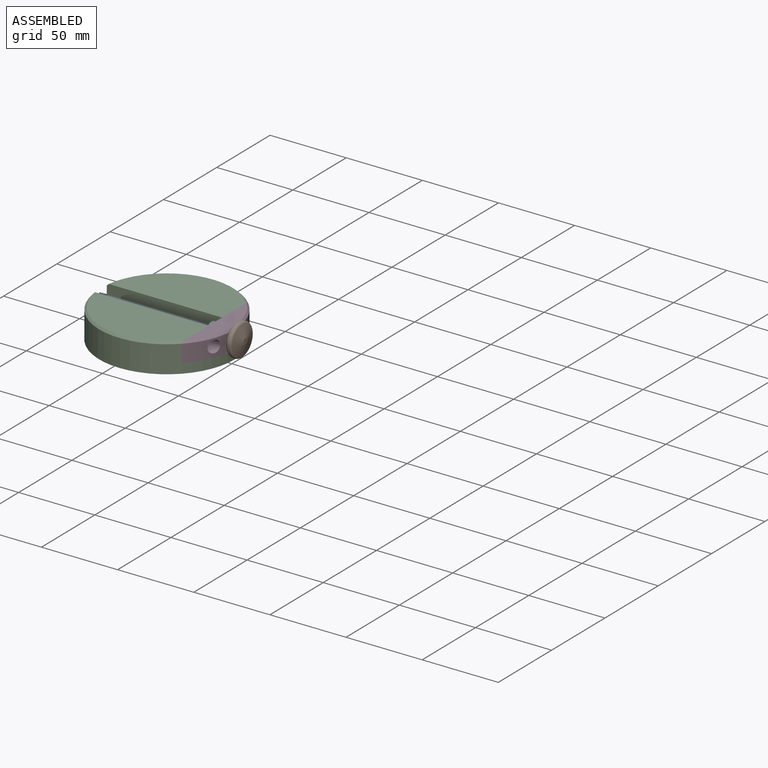
[diagram: assembled view]
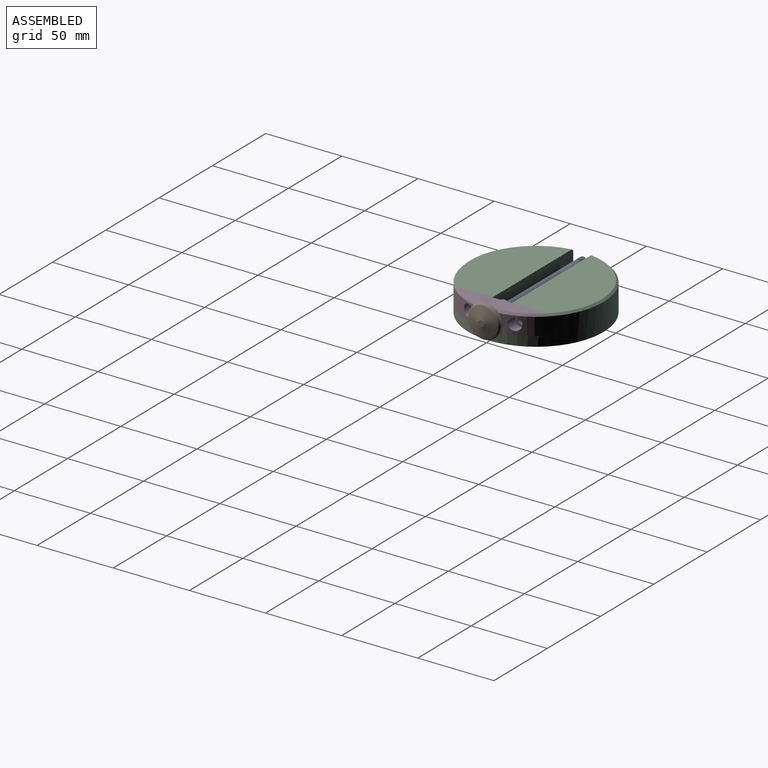
[diagram: assembled view, second angle]
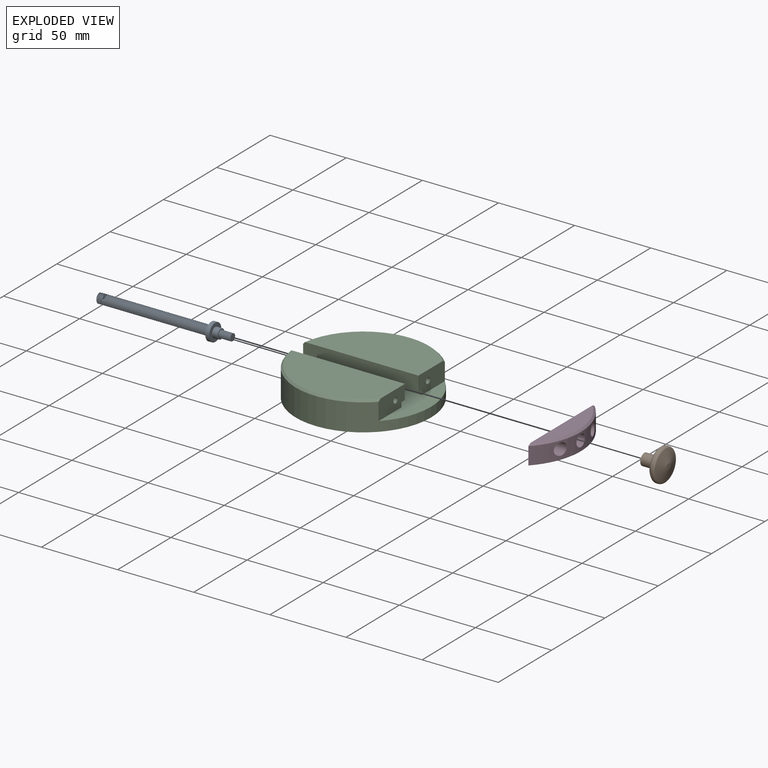
[diagram: exploded view]
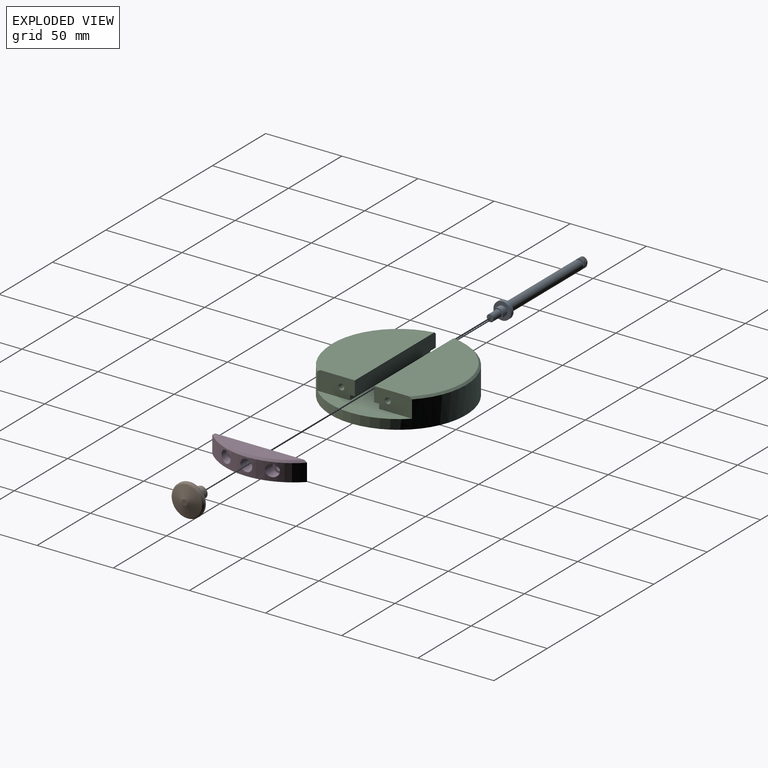
[diagram: exploded view, second angle]
ASSEMBLY  parts=4 mates=3
PART A: 24 faces, bbox 89.7x12.2x12.2 mm
  f0: cylinder r=2.34mm len=4.67mm, axis (-1,0,0), area 10.2mm2, adj f1,f16,f21,f22,f23
  f1: cylinder r=2.34mm len=4.67mm, axis (-1,0,0), area 3.4mm2, adj f0,f2,f22,f23
  f2: cylinder r=2.34mm len=4.67mm, axis (-1,0,0), area 3.4mm2, adj f1,f3,f22,f23
  f3: cylinder r=2.34mm len=4.67mm, axis (-1,0,0), area 3.5mm2, adj f2,f4,f22,f23
  f4: cylinder r=2.34mm len=4.67mm, axis (-1,0,0), area 3.5mm2, adj f3,f5,f22,f23
  f5: cylinder r=2.34mm len=4.67mm, axis (-1,0,0), area 3.4mm2, adj f4,f6,f22,f23
  f6: cylinder r=2.34mm len=4.67mm, axis (-1,0,0), area 3.4mm2, adj f5,f7,f22,f23
  f7: cylinder r=2.34mm len=4.67mm, axis (-1,0,0), area 3.5mm2, adj f6,f8,f22,f23
  f8: cylinder r=2.34mm len=4.67mm, axis (-1,0,0), area 3.2mm2, adj f7,f9,f15,f22,f23
  f9: cylinder r=2.34mm len=1.32mm, axis (-1,0,0), area 0.1mm2, adj f8,f15,f22
  f10: cylinder r=3.17mm len=6.35mm, axis (-1,0,0), area 76mm2, adj f11,f16
  f11: plane 11.43x11.43mm, normal (1,0,0), area 70.9mm2, adj f10,f12
  f12: cylinder r=5.71mm len=11.43mm, axis (-1,0,0), area 91.2mm2, adj f11,f13
  f13: plane 11.43x11.43mm, normal (-1,0,0), area 70.9mm2, adj f12,f14
  f14: cylinder r=3.17mm len=6.35mm, axis (-1,0,0), area 12.7mm2, adj f13,f17,f19
  f15: plane 4.7x4.54mm, normal (1,0,0), area 14.6mm2, adj f8,f9,f22,f23
  f16: plane 6.35x6.35mm, normal (1,0,0), area 14.5mm2, adj f0,f10
  f17: plane 1.27x1.02mm, normal (0,1,0), area 0.6mm2, adj f14,f18,f19
  f18: bspline ~73.87x7.33mm, area 1148.4mm2, adj f17,f19,f20
  f19: bspline ~74.3x7.33mm, area 1160.7mm2, adj f14,f17,f18,f20
  f20: plane 6.19x6.17mm, normal (-1,0,0), area 22.6mm2, adj f18,f19
  f21: plane 0.56x0.43mm, normal (0,0.81,-0.59), area 0.1mm2, adj f0,f22,f23
  f22: bspline ~7.66x5.84mm, area 82.3mm2, adj f0,f1,f2,f3,f4,f5,f6,f7
  f23: bspline ~7.92x5.84mm, area 85.9mm2, adj f0,f1,f2,f3,f4,f5,f6,f7
PART B: 27 faces, bbox 16.1x23x23 mm
  f0: plane 3.81x3.81mm, normal (1,0,0), area 11.4mm2, adj f1
  f1: cone r=10.61mm half-angle=74.4deg, axis (-1,0,0), area 293.8mm2, adj f0,f18
  f2: cylinder r=10.61mm len=21.22mm, axis (-1,0,0), area 64.9mm2, adj f18,f19
  f3: cone r=9.44mm half-angle=45.6deg, axis (1,0,0), area 68.1mm2, adj f4,f19
  f4: plane 18.89x18.89mm, normal (-1,0,0), area 201.7mm2, adj f3,f5
  f5: cone r=3.81mm half-angle=45.6deg, axis (1,0,0), area 46.1mm2, adj f4,f6
  f6: cylinder r=3.81mm len=8.89mm, axis (-1,0,0), area 212.8mm2, adj f5,f7
  f7: plane 7.62x7.62mm, normal (-1,0,0), area 34.2mm2, adj f6,f16
  f8: cylinder r=1.91mm len=3.81mm, axis (-1,0,0), area 0.2mm2, adj f9,f17,f22,f26
  f9: cylinder r=1.91mm len=3.81mm, axis (-1,0,0), area 0.2mm2, adj f8,f10,f22,f26
  f10: cylinder r=1.91mm len=3.81mm, axis (-1,0,0), area 0.2mm2, adj f9,f11,f22,f26
  f11: cylinder r=1.91mm len=3.81mm, axis (-1,0,0), area 0.2mm2, adj f10,f12,f22,f26
  f12: cylinder r=1.91mm len=3.81mm, axis (-1,0,0), area 0.2mm2, adj f11,f13,f22,f26
  f13: cylinder r=1.91mm len=3.81mm, axis (-1,0,0), area 0.2mm2, adj f12,f14,f22,f26
  f14: cylinder r=1.91mm len=3.81mm, axis (-1,0,0), area 0.2mm2, adj f13,f15,f22,f26
  f15: cylinder r=1.91mm len=3.81mm, axis (-1,0,0), area 0.2mm2, adj f14,f16,f22,f26
  f16: cylinder r=1.91mm len=3.81mm, axis (-1,0,0), area 5.2mm2, adj f7,f15,f21,f22,f26
  f17: plane 3.65x3.49mm, normal (-1,0,0), area 9.6mm2, adj f8,f22,f23,f24,f25,f26
  f18: torus R=9.34mm, axis (1,0,0), area 106.6mm2, adj f1,f2
  f19: torus R=9.34mm, axis (1,0,0), area 66.5mm2, adj f2,f3
  f20: plane 0.79x0.6mm, normal (0,1,0), area 0.3mm2, adj f22,f23,f24,f25,f26
  f21: plane 0.77x0.35mm, normal (0,0.81,-0.59), area 0.2mm2, adj f16,f22,f26
  f22: bspline ~8.07x5.4mm, area 74.8mm2, adj f8,f9,f10,f11,f12,f13,f14,f15
  f23: bspline ~4.37x3.79mm, area 1.8mm2, adj f17,f20,f22,f24
  f24: cylinder r=1.74mm len=3.49mm, axis (-1,0,0), area 4.5mm2, adj f17,f20,f23,f25
  f25: bspline ~1.64x1.02mm, area 0mm2, adj f17,f20,f24,f26
  f26: bspline ~8.07x5.4mm, area 74.6mm2, adj f8,f9,f10,f11,f12,f13,f14,f15
PART C: 19 faces, bbox 88.9x88.9x19.1 mm
  f0: plane 74.46x36.83mm, normal (0,0,1), area 2224.3mm2, adj f1,f9,f18
  f1: plane 24.76x12.7mm, normal (1,0,0), area 291.8mm2, adj f0,f3,f6,f8,f9,f12,f15,f18
  f2: plane 74.46x36.83mm, normal (0,0,1), area 2224.3mm2, adj f5,f10,f17
  f3: cylinder r=44.45mm len=88.9mm, axis (0,0,-1), area 4011.9mm2, adj f1,f4,f5,f6,f7,f8,f9,f10
  f4: plane 88.9x88.9mm, normal (0,0,-1), area 6207.2mm2, adj f3
  f5: plane 24.76x12.7mm, normal (1,0,0), area 291.8mm2, adj f2,f3,f6,f7,f10,f11,f13,f17
  f6: plane 88.9x62.22mm, normal (0,0,1), area 1989mm2, adj f1,f3,f5,f7,f8
  f7: plane 75.17x3.18mm, normal (0,1,0), area 238.7mm2, adj f3,f5,f6,f11
  f8: plane 75.17x3.18mm, normal (0,-1,0), area 238.7mm2, adj f1,f3,f6,f12
  f9: plane 75.75x9.53mm, normal (0,-1,0), area 720.6mm2, adj f0,f1,f3,f12,f18
  f10: plane 75.75x9.53mm, normal (0,1,0), area 720.6mm2, adj f2,f3,f5,f11,f17
  f11: plane 75.74x3.18mm, normal (0,0,-1), area 239.6mm2, adj f3,f5,f7,f10
  f12: plane 75.74x3.18mm, normal (0,0,-1), area 239.6mm2, adj f1,f3,f8,f9
  f13: cylinder r=1.91mm len=19.05mm, axis (1,0,0), area 228mm2, adj f5,f14
  f14: plane 3.81x3.81mm, normal (1,0,0), area 11.4mm2, adj f13
  f15: cylinder r=1.91mm len=19.05mm, axis (1,0,0), area 228mm2, adj f1,f16
  f16: plane 3.81x3.81mm, normal (1,0,0), area 11.4mm2, adj f15
  f17: cone r=43.18mm half-angle=45deg, axis (0,0,-1), area 176mm2, adj f2,f3,f5,f10
  f18: cone r=43.18mm half-angle=45deg, axis (0,0,-1), area 176mm2, adj f0,f1,f3,f9
PART D: 14 faces, bbox 13.6x62.2x12.7 mm
  f0: plane 62.24x12.72mm, normal (-1,0,0), area 719.6mm2, adj f1,f2,f3,f10,f11,f12,f13
  f1: cylinder r=44.45mm len=62.22mm, axis (0,0,-1), area 635.2mm2, adj f0,f3,f4,f6,f8,f13
  f2: plane 58.53x11.43mm, normal (0,0,1), area 459.3mm2, adj f0,f13
  f3: plane 62.22x12.7mm, normal (0,0,-1), area 543.9mm2, adj f0,f1
  f4: cylinder r=3.94mm len=8.89mm, axis (1,0,0), area 217.7mm2, adj f1,f5
  f5: plane 7.87x7.87mm, normal (1,0,0), area 17mm2, adj f4,f12
  f6: cylinder r=3.94mm len=7.87mm, axis (1,0,0), area 150.7mm2, adj f1,f7
  f7: plane 7.87x7.87mm, normal (1,0,0), area 30.4mm2, adj f6,f11
  f8: cylinder r=3.94mm len=7.87mm, axis (1,0,0), area 150.6mm2, adj f1,f9
  f9: plane 7.87x7.87mm, normal (1,0,0), area 30.4mm2, adj f8,f10
  f10: cylinder r=2.41mm len=4.83mm, axis (1,0,0), area 57.8mm2, adj f0,f9
  f11: cylinder r=2.41mm len=4.83mm, axis (1,0,0), area 57.8mm2, adj f0,f7
  f12: cylinder r=3.17mm len=6.35mm, axis (1,0,0), area 76mm2, adj f0,f5
  f13: cone r=43.18mm half-angle=45deg, axis (0,0,-1), area 119.6mm2, adj f0,f1,f2
PLACE A rot(axis=(-1,0,0),4.6deg) t=(6.08,-1.42,-44.64)mm
PLACE B rot(axis=(-1,0,0),4.6deg) t=(-7.55,-1.42,-44.57)mm
PLACE C t=(6.08,1.82,-17.02)mm fixed
PLACE D t=(-19.32,1.82,-17.02)mm
MATE fastened C.f5 <-> D.f0  axis (1,0,0) through (37.83,-29.29,0.76)mm
MATE fastened B.f1 <-> A.f0  axis (-1,0,0) through (49.26,1.82,-4.32)mm
MATE revolute A.f0 <-> D.f4  axis (-1,0,0) through (37.83,1.82,-4.32)mm
